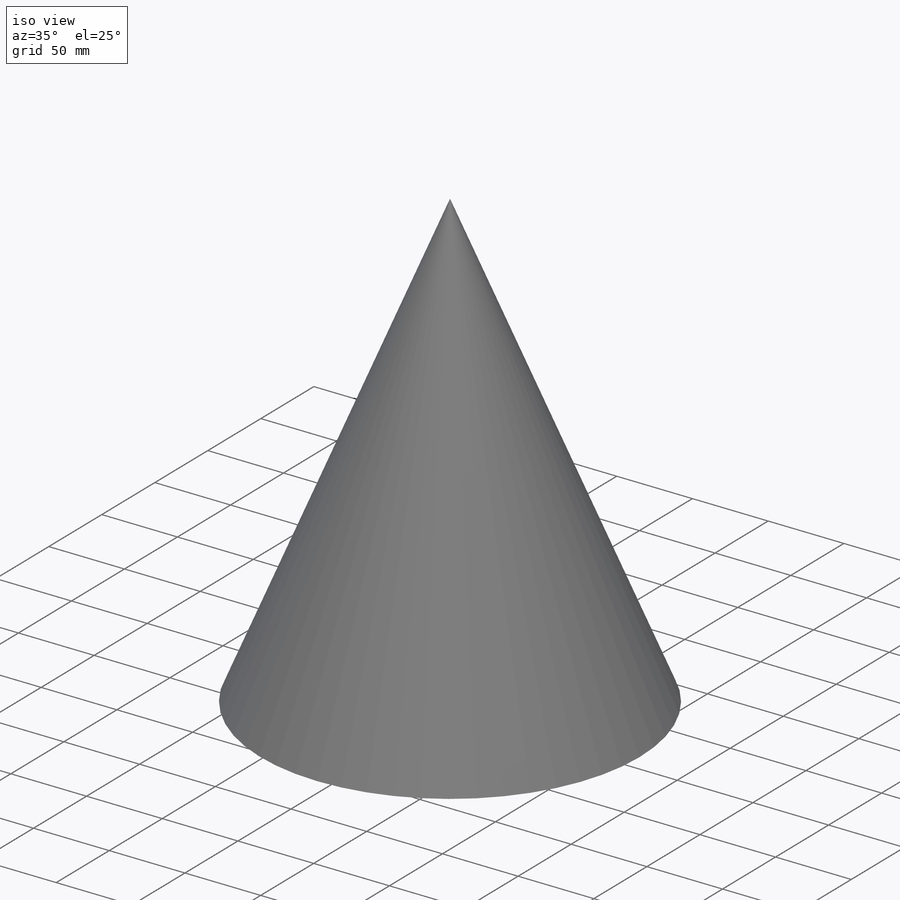
[diagram: iso view]
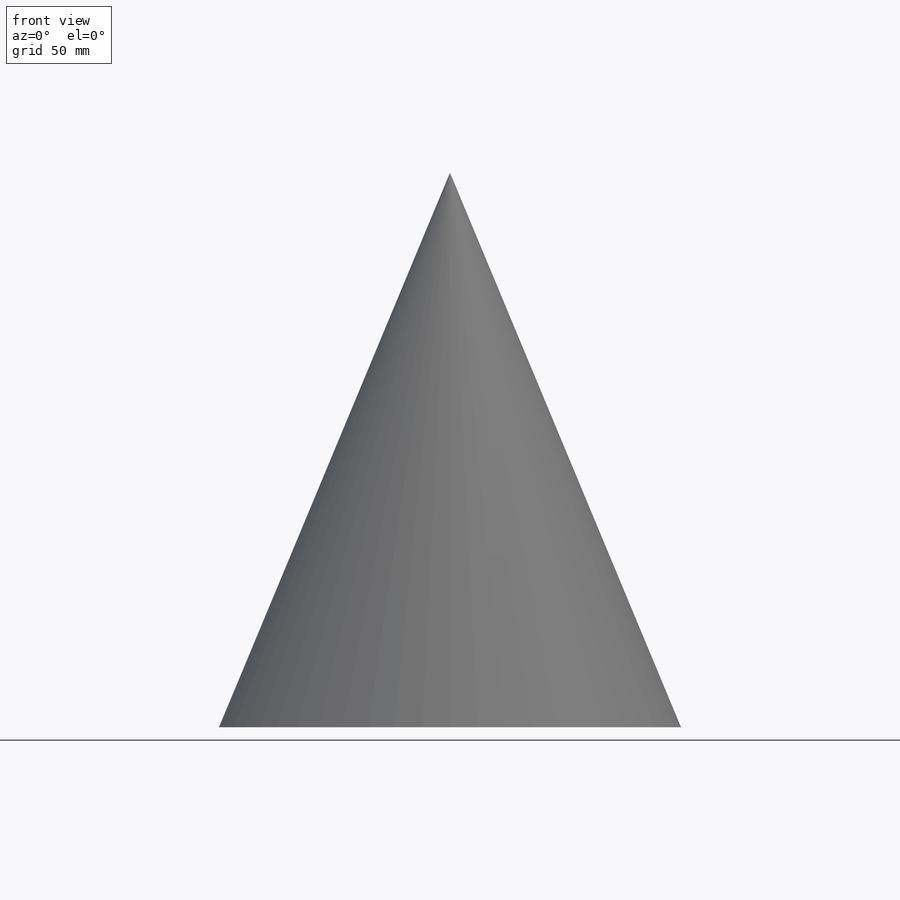
[diagram: front view]
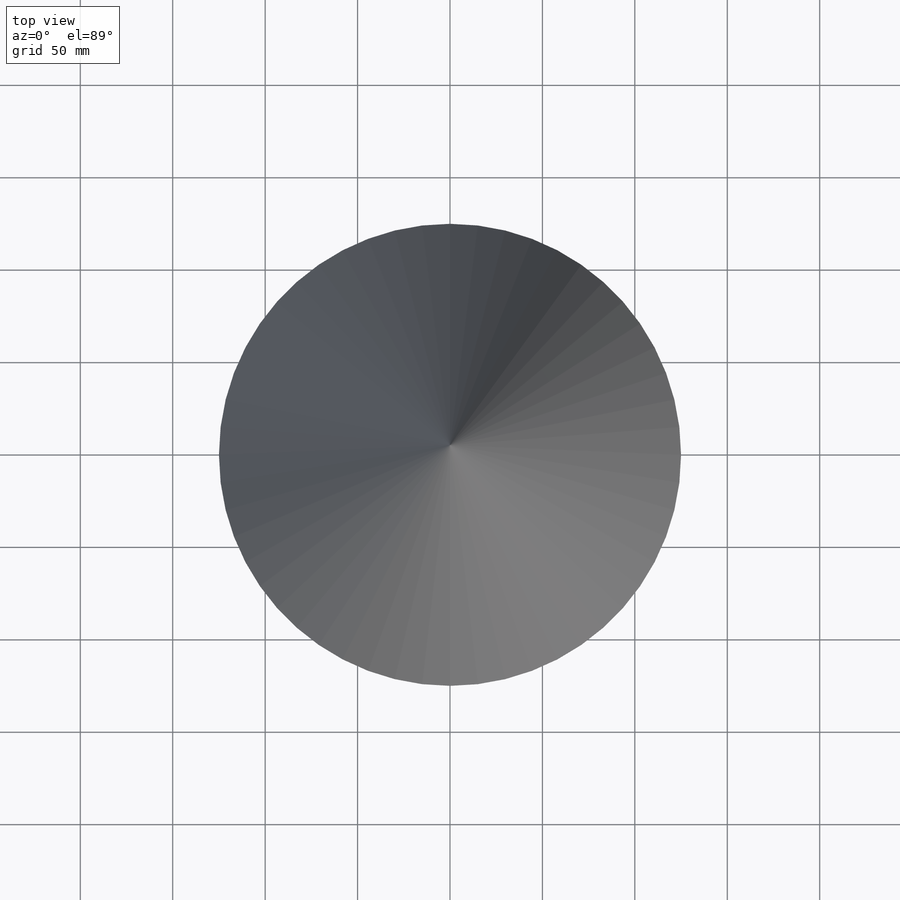
[diagram: top view]
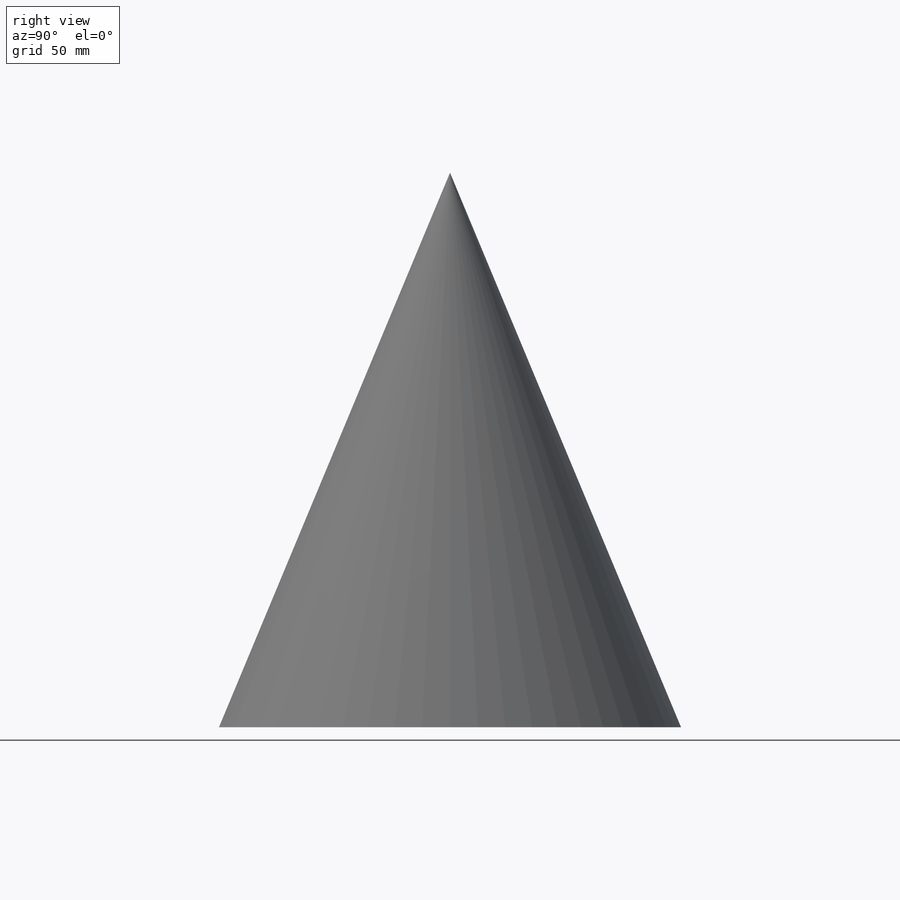
[diagram: right view]
SOLIDWORKS PART (.sldprt)
format: sldprt  version: not decoded by parser v0  size: 195,072 bytes
history: native  units: mm
features: plane x3, sketch x3, pattern_circular x2, material x1, surface_op x1, fillet x1, cut_extrude x1, mirror x1, chamfer x1 + 2 further entries (+8 scaffold rows collapsed)
feature tree (24):
  scaffold x8  (default folders/planes/origin — collapsed)
  material  "Allgemein"
  plane  "Vorderansicht"
  plane  "Draufsicht"
  plane  "Seitenansicht"
  "Y-Achse"
  "Z-Achse"
  sketch  "Skizze1"  dims[c1.D1=250.0mm c1.D2=300.0mm c1.D3=~115.384615mm c1.D4=5.0mm c1.D5=~109.615385mm c1.D6=300.0mm c2.D6=~22.619865deg c2.D4=15.0mm]
  sketch  "Skizze2"  dims[c1.D1=~126.562193mm c2.D1=45.0deg]
  surface_op  "Oberfläche-Linear austragen1"
  pattern_circular  "Kreismuster1"  Count=4 Angle=360deg
  pattern_circular  "Oberflächenausfüllung2"  [2 undecoded]
  fillet  "Verrundung2"  [1 undecoded]
  sketch  "Skizze3"  dims[D1=~316.803416mm]
  cut_extrude  "Schnitt-Linear austragen1"  [1 undecoded]
  mirror  "Spiegeln1"
  chamfer  "Fase1"  Distance=15mm Angle=22.619865deg
decode coverage: 5 of 10 modeling features carry decoded parameters; 2 rows unclassified (native names shown)
note: ~ marks probable driven/reference dimensions
note: 4 parameter values undecoded
note: suppression state not decoded; provenance and decode notes live in map.json
